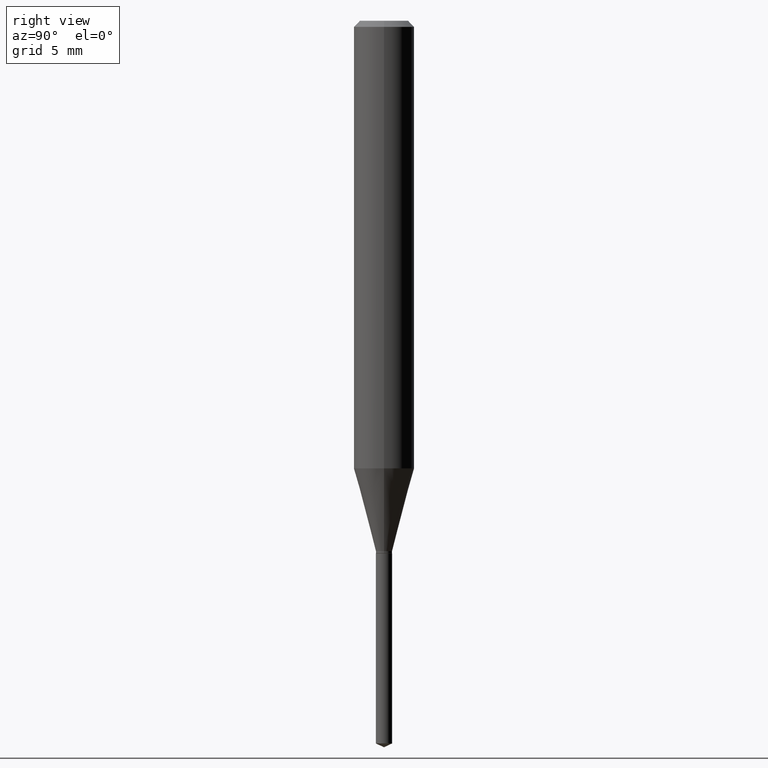
[diagram: clean part render]
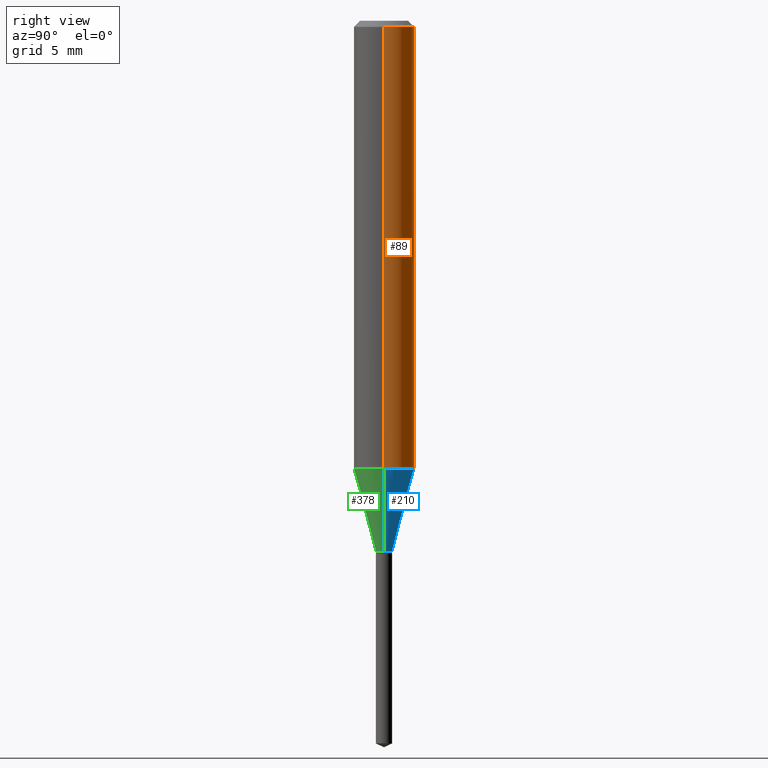
[diagram: same view with three faces highlighted in distinct colors, each labeled with its STEP entity id]
A machine part, right view with three faces highlighted in distinct colors.
Their STEP definitions:

[orange] entity #89 — the highlighted cylindrical surface (edge-blend (fillet) strip) has radius 1.5875 mm, axis along (-0, 0, 1).
#3 = ORIENTED_EDGE ( 'NONE', *, *, #4, .F. ) ;
#4 = EDGE_CURVE ( 'NONE', #376, #220, #438, .T. ) ;
#15 = CYLINDRICAL_SURFACE ( 'NONE', #336, 0.06250000000000005551 ) ;
#17 = CARTESIAN_POINT ( 'NONE',  ( 0.000000000000000000, 0.000000000000000000, 0.000000000000000000 ) ) ;
#34 = ORIENTED_EDGE ( 'NONE', *, *, #356, .T. ) ;
#44 = CARTESIAN_POINT ( 'NONE',  ( -0.06250000000000005551, 4.440892098500630106E-16, -3.074334431409318916E-30 ) ) ;
#48 = VERTEX_POINT ( 'NONE', #58 ) ;
#53 = DIRECTION ( 'NONE',  ( 1.000000000000000000, -6.982962677686266711E-15, 0.000000000000000000 ) ) ;
#58 = CARTESIAN_POINT ( 'NONE',  ( -0.06250000000000012490, -2.782942708109644843E-15, -0.9242586755537238741 ) ) ;
#70 = EDGE_CURVE ( 'NONE', #113, #376, #140, .T. ) ;
#89 = ADVANCED_FACE ( 'NONE', ( #399 ), #15, .T. ) ;
#113 = VERTEX_POINT ( 'NONE', #327 ) ;
#120 = DIRECTION ( 'NONE',  ( -2.445468806185136597E-29, 3.491481338843145583E-15, 1.000000000000000000 ) ) ;
#132 = DIRECTION ( 'NONE',  ( 1.000000000000000000, -6.982962677686267499E-15, 4.876176775795936353E-29 ) ) ;
#136 = DIRECTION ( 'NONE',  ( -2.445468806185136597E-29, 3.491481338843145583E-15, 1.000000000000000000 ) ) ;
#140 = LINE ( 'NONE', #209, #349 ) ;
#169 = DIRECTION ( 'NONE',  ( -2.445468806185136597E-29, 3.491481338843145583E-15, 1.000000000000000000 ) ) ;
#184 = ORIENTED_EDGE ( 'NONE', *, *, #418, .T. ) ;
#200 = ORIENTED_EDGE ( 'NONE', *, *, #70, .F. ) ;
#201 = CARTESIAN_POINT ( 'NONE',  ( 0.06250000000000000000, -4.800786840909312308E-16, -0.01250000000000008223 ) ) ;
#209 = CARTESIAN_POINT ( 'NONE',  ( 0.06250000000000005551, -4.364351673553921131E-16, 3.047610484872463023E-30 ) ) ;
#220 = VERTEX_POINT ( 'NONE', #331 ) ;
#231 = AXIS2_PLACEMENT_3D ( 'NONE', #466, #120, #347 ) ;
#243 = AXIS2_PLACEMENT_3D ( 'NONE', #473, #136, #53 ) ;
#315 = DIRECTION ( 'NONE',  ( -2.445468806185136877E-29, 3.491481338843145188E-15, 1.000000000000000000 ) ) ;
#327 = CARTESIAN_POINT ( 'NONE',  ( 0.06250000000000012490, -3.663467085315100312E-15, -0.9242586755537238741 ) ) ;
#331 = CARTESIAN_POINT ( 'NONE',  ( -0.06250000000000000000, -1.191248507497560105E-15, -0.01250000000000008223 ) ) ;
#336 = AXIS2_PLACEMENT_3D ( 'NONE', #17, #169, #132 ) ;
#347 = DIRECTION ( 'NONE',  ( 1.000000000000000000, -6.982962677686264344E-15, 0.000000000000000000 ) ) ;
#349 = VECTOR ( 'NONE', #396, 39.37007874015748143 ) ;
#350 = CIRCLE ( 'NONE', #231, 0.06250000000000012490 ) ;
#353 = LINE ( 'NONE', #44, #391 ) ;
#356 = EDGE_CURVE ( 'NONE', #48, #220, #353, .T. ) ;
#376 = VERTEX_POINT ( 'NONE', #201 ) ;
#391 = VECTOR ( 'NONE', #315, 39.37007874015748143 ) ;
#396 = DIRECTION ( 'NONE',  ( -2.445468806185136877E-29, 3.491481338843145188E-15, 1.000000000000000000 ) ) ;
#399 = FACE_OUTER_BOUND ( 'NONE', #459, .T. ) ;
#418 = EDGE_CURVE ( 'NONE', #113, #48, #350, .T. ) ;
#438 = CIRCLE ( 'NONE', #243, 0.06250000000000000000 ) ;
#459 = EDGE_LOOP ( 'NONE', ( #184, #34, #3, #200 ) ) ;
#466 = CARTESIAN_POINT ( 'NONE',  ( 2.260245759912620669E-29, -3.227031917959708248E-15, -0.9242586755537238741 ) ) ;
#473 = CARTESIAN_POINT ( 'NONE',  ( 3.056836007731440977E-31, -4.364351673553961068E-17, -0.01250000000000008223 ) ) ;

[blue] entity #210 — the highlighted conical surface has half-angle 15 deg.
#25 = AXIS2_PLACEMENT_3D ( 'NONE', #52, #245, #92 ) ;
#26 = VECTOR ( 'NONE', #275, 39.37007874015748854 ) ;
#32 = CARTESIAN_POINT ( 'NONE',  ( 0.01674999999999999406, -3.940136690884488960E-15, -1.094999999999999973 ) ) ;
#48 = VERTEX_POINT ( 'NONE', #58 ) ;
#52 = CARTESIAN_POINT ( 'NONE',  ( 2.677788342772724596E-29, -3.823172066033244277E-15, -1.094999999999999973 ) ) ;
#54 = VECTOR ( 'NONE', #223, 39.37007874015748854 ) ;
#58 = CARTESIAN_POINT ( 'NONE',  ( -0.06250000000000012490, -2.782942708109644843E-15, -0.9242586755537238741 ) ) ;
#59 = EDGE_CURVE ( 'NONE', #158, #379, #267, .T. ) ;
#68 = CONICAL_SURFACE ( 'NONE', #157, 0.01674999999999999406, 0.2617993877991499629 ) ;
#77 = EDGE_LOOP ( 'NONE', ( #425, #258, #348, #311 ) ) ;
#92 = DIRECTION ( 'NONE',  ( 1.000000000000000000, -6.982962677686262766E-15, 0.000000000000000000 ) ) ;
#113 = VERTEX_POINT ( 'NONE', #327 ) ;
#120 = DIRECTION ( 'NONE',  ( -2.445468806185136597E-29, 3.491481338843145583E-15, 1.000000000000000000 ) ) ;
#123 = LINE ( 'NONE', #193, #26 ) ;
#149 = CARTESIAN_POINT ( 'NONE',  ( 2.677788342772724596E-29, -3.823172066033244277E-15, -1.094999999999999973 ) ) ;
#151 = LINE ( 'NONE', #32, #54 ) ;
#157 = AXIS2_PLACEMENT_3D ( 'NONE', #149, #186, #302 ) ;
#158 = VERTEX_POINT ( 'NONE', #165 ) ;
#165 = CARTESIAN_POINT ( 'NONE',  ( 0.01674999999999999406, -3.940136690884488960E-15, -1.094999999999999973 ) ) ;
#186 = DIRECTION ( 'NONE',  ( -2.445468806185136597E-29, 3.491481338843145583E-15, 1.000000000000000000 ) ) ;
#193 = CARTESIAN_POINT ( 'NONE',  ( -0.01674999999999999406, -3.704156157793427982E-15, -1.094999999999999973 ) ) ;
#210 = ADVANCED_FACE ( 'NONE', ( #293 ), #68, .T. ) ;
#223 = DIRECTION ( 'NONE',  ( 0.2588190451025212391, 1.565188264969622362E-15, 0.9659258262890679791 ) ) ;
#231 = AXIS2_PLACEMENT_3D ( 'NONE', #466, #120, #347 ) ;
#245 = DIRECTION ( 'NONE',  ( -2.445468806185136597E-29, 3.491481338843145583E-15, 1.000000000000000000 ) ) ;
#258 = ORIENTED_EDGE ( 'NONE', *, *, #430, .T. ) ;
#267 = CIRCLE ( 'NONE', #25, 0.01674999999999999406 ) ;
#275 = DIRECTION ( 'NONE',  ( -0.2588190451025212391, 5.211531920934549464E-15, 0.9659258262890679791 ) ) ;
#293 = FACE_OUTER_BOUND ( 'NONE', #77, .T. ) ;
#301 = EDGE_CURVE ( 'NONE', #158, #113, #151, .T. ) ;
#302 = DIRECTION ( 'NONE',  ( 1.000000000000000000, -6.982962677686262766E-15, 0.000000000000000000 ) ) ;
#311 = ORIENTED_EDGE ( 'NONE', *, *, #301, .F. ) ;
#312 = CARTESIAN_POINT ( 'NONE',  ( -0.01674999999999999406, -3.712011990805825142E-15, -1.094999999999999973 ) ) ;
#327 = CARTESIAN_POINT ( 'NONE',  ( 0.06250000000000012490, -3.663467085315100312E-15, -0.9242586755537238741 ) ) ;
#347 = DIRECTION ( 'NONE',  ( 1.000000000000000000, -6.982962677686264344E-15, 0.000000000000000000 ) ) ;
#348 = ORIENTED_EDGE ( 'NONE', *, *, #418, .F. ) ;
#350 = CIRCLE ( 'NONE', #231, 0.06250000000000012490 ) ;
#379 = VERTEX_POINT ( 'NONE', #312 ) ;
#418 = EDGE_CURVE ( 'NONE', #113, #48, #350, .T. ) ;
#425 = ORIENTED_EDGE ( 'NONE', *, *, #59, .T. ) ;
#430 = EDGE_CURVE ( 'NONE', #379, #48, #123, .T. ) ;
#466 = CARTESIAN_POINT ( 'NONE',  ( 2.260245759912620669E-29, -3.227031917959708248E-15, -0.9242586755537238741 ) ) ;

[green] entity #378 — the highlighted conical surface has half-angle 15 deg.
#26 = VECTOR ( 'NONE', #275, 39.37007874015748854 ) ;
#32 = CARTESIAN_POINT ( 'NONE',  ( 0.01674999999999999406, -3.940136690884488960E-15, -1.094999999999999973 ) ) ;
#33 = ORIENTED_EDGE ( 'NONE', *, *, #171, .T. ) ;
#48 = VERTEX_POINT ( 'NONE', #58 ) ;
#54 = VECTOR ( 'NONE', #223, 39.37007874015748854 ) ;
#58 = CARTESIAN_POINT ( 'NONE',  ( -0.06250000000000012490, -2.782942708109644843E-15, -0.9242586755537238741 ) ) ;
#62 = DIRECTION ( 'NONE',  ( 1.000000000000000000, -6.982962677686262766E-15, 0.000000000000000000 ) ) ;
#65 = DIRECTION ( 'NONE',  ( 1.000000000000000000, -6.982962677686264344E-15, 0.000000000000000000 ) ) ;
#110 = DIRECTION ( 'NONE',  ( -2.445468806185136597E-29, 3.491481338843145583E-15, 1.000000000000000000 ) ) ;
#113 = VERTEX_POINT ( 'NONE', #327 ) ;
#115 = AXIS2_PLACEMENT_3D ( 'NONE', #316, #422, #62 ) ;
#123 = LINE ( 'NONE', #193, #26 ) ;
#124 = CONICAL_SURFACE ( 'NONE', #449, 0.01674999999999999406, 0.2617993877991499629 ) ;
#125 = CIRCLE ( 'NONE', #197, 0.06250000000000012490 ) ;
#151 = LINE ( 'NONE', #32, #54 ) ;
#152 = ORIENTED_EDGE ( 'NONE', *, *, #430, .F. ) ;
#158 = VERTEX_POINT ( 'NONE', #165 ) ;
#165 = CARTESIAN_POINT ( 'NONE',  ( 0.01674999999999999406, -3.940136690884488960E-15, -1.094999999999999973 ) ) ;
#171 = EDGE_CURVE ( 'NONE', #379, #158, #250, .T. ) ;
#191 = ORIENTED_EDGE ( 'NONE', *, *, #256, .F. ) ;
#193 = CARTESIAN_POINT ( 'NONE',  ( -0.01674999999999999406, -3.704156157793427982E-15, -1.094999999999999973 ) ) ;
#197 = AXIS2_PLACEMENT_3D ( 'NONE', #345, #110, #65 ) ;
#223 = DIRECTION ( 'NONE',  ( 0.2588190451025212391, 1.565188264969622362E-15, 0.9659258262890679791 ) ) ;
#250 = CIRCLE ( 'NONE', #115, 0.01674999999999999406 ) ;
#256 = EDGE_CURVE ( 'NONE', #48, #113, #125, .T. ) ;
#275 = DIRECTION ( 'NONE',  ( -0.2588190451025212391, 5.211531920934549464E-15, 0.9659258262890679791 ) ) ;
#301 = EDGE_CURVE ( 'NONE', #158, #113, #151, .T. ) ;
#309 = EDGE_LOOP ( 'NONE', ( #152, #33, #390, #191 ) ) ;
#310 = CARTESIAN_POINT ( 'NONE',  ( 2.677788342772724596E-29, -3.823172066033244277E-15, -1.094999999999999973 ) ) ;
#312 = CARTESIAN_POINT ( 'NONE',  ( -0.01674999999999999406, -3.712011990805825142E-15, -1.094999999999999973 ) ) ;
#316 = CARTESIAN_POINT ( 'NONE',  ( 2.677788342772724596E-29, -3.823172066033244277E-15, -1.094999999999999973 ) ) ;
#327 = CARTESIAN_POINT ( 'NONE',  ( 0.06250000000000012490, -3.663467085315100312E-15, -0.9242586755537238741 ) ) ;
#345 = CARTESIAN_POINT ( 'NONE',  ( 2.260245759912620669E-29, -3.227031917959708248E-15, -0.9242586755537238741 ) ) ;
#378 = ADVANCED_FACE ( 'NONE', ( #387 ), #124, .T. ) ;
#379 = VERTEX_POINT ( 'NONE', #312 ) ;
#387 = FACE_OUTER_BOUND ( 'NONE', #309, .T. ) ;
#390 = ORIENTED_EDGE ( 'NONE', *, *, #301, .T. ) ;
#422 = DIRECTION ( 'NONE',  ( -2.445468806185136597E-29, 3.491481338843145583E-15, 1.000000000000000000 ) ) ;
#430 = EDGE_CURVE ( 'NONE', #379, #48, #123, .T. ) ;
#449 = AXIS2_PLACEMENT_3D ( 'NONE', #310, #461, #468 ) ;
#461 = DIRECTION ( 'NONE',  ( -2.445468806185136597E-29, 3.491481338843145583E-15, 1.000000000000000000 ) ) ;
#468 = DIRECTION ( 'NONE',  ( 1.000000000000000000, -6.982962677686262766E-15, 0.000000000000000000 ) ) ;